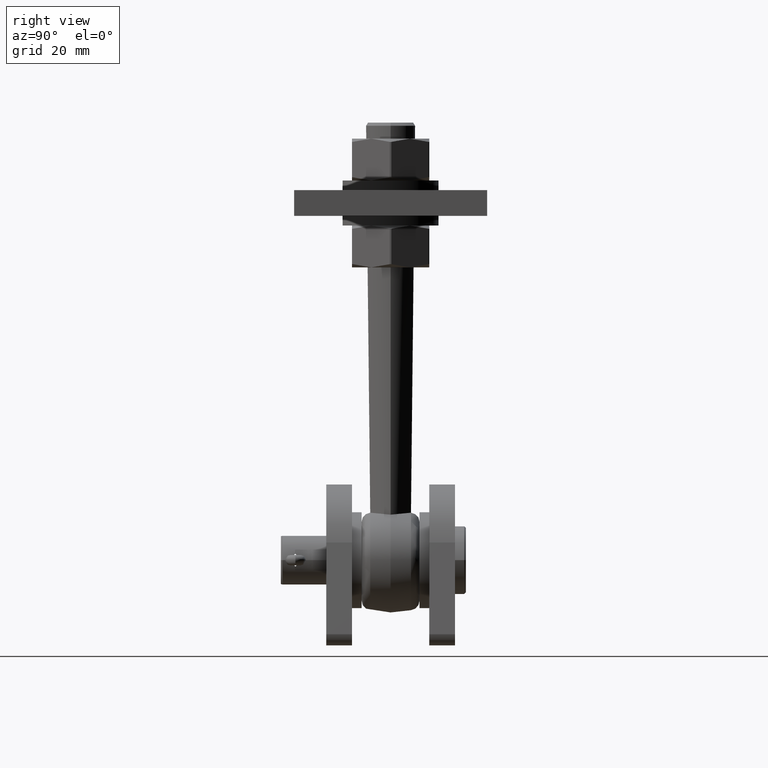
[diagram: clean part render]
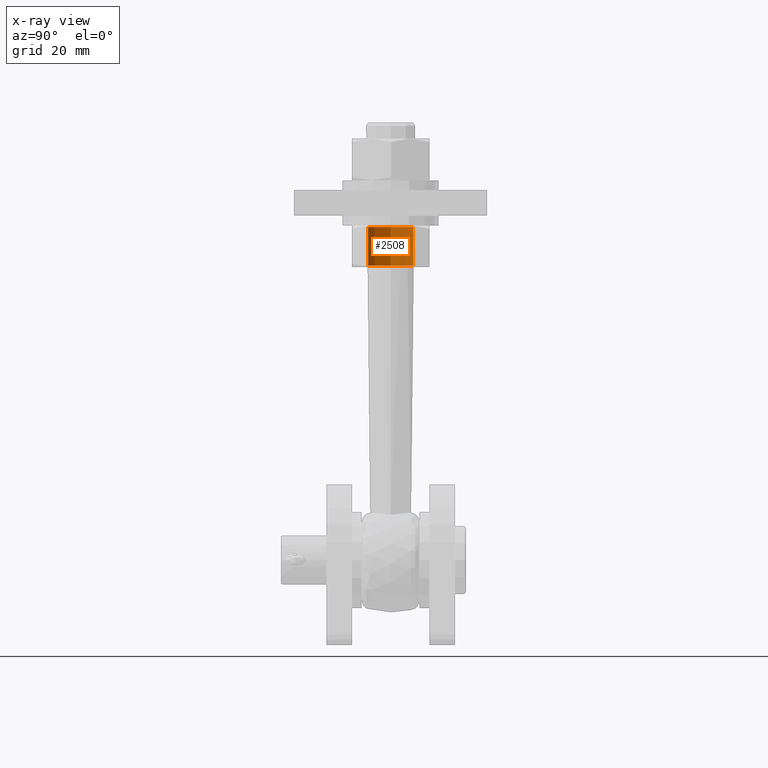
[diagram: x-ray — body ghosted, one internal face saturated and labeled with its STEP entity id]
A machine part, right view, then the same camera in x-ray: the body is ghosted and one INTERNAL B-rep face — a face not visible from any outside direction — is saturated and labeled: STEP entity #2508.
In plain terms, the highlighted cylindrical surface (edge-blend (fillet) strip) has radius 7 mm, axis along (-0, 0, -1).
Its self-contained STEP definition (entity closure, byte-faithful):
#676 = DIRECTION ( 'NONE',  ( 0.000000000000000000, 1.000000000000000000, 1.372308401475337047E-42 ) ) ;
#2123 = LINE ( 'NONE', #11245, #11296 ) ;
#2389 = DIRECTION ( 'NONE',  ( -8.437388524160237871E-40, 0.000000000000000000, 1.000000000000000000 ) ) ;
#2508 = ADVANCED_FACE ( 'NONE', ( #16889 ), #13779, .F. ) ;
#3003 = VERTEX_POINT ( 'NONE', #6179 ) ;
#3016 = CARTESIAN_POINT ( 'NONE',  ( -5.906170346660808488E-39, -6.000000000000005329, 6.999999999999991118 ) ) ;
#3023 = CARTESIAN_POINT ( 'NONE',  ( 8.572527594031215824E-16, 6.500000000000005329, -6.999999999999991118 ) ) ;
#3639 = ORIENTED_EDGE ( 'NONE', *, *, #11315, .T. ) ;
#3680 = EDGE_CURVE ( 'NONE', #4481, #5420, #13346, .T. ) ;
#3934 = CARTESIAN_POINT ( 'NONE',  ( 0.000000000000000000, -6.000000000000005329, -8.233850408869966871E-42 ) ) ;
#4481 = VERTEX_POINT ( 'NONE', #12839 ) ;
#4956 = VECTOR ( 'NONE', #9739, 1000.000000000000000 ) ;
#5247 = AXIS2_PLACEMENT_3D ( 'NONE', #11671, #14259, #2389 ) ;
#5420 = VERTEX_POINT ( 'NONE', #16581 ) ;
#5735 = EDGE_CURVE ( 'NONE', #3003, #4481, #15938, .T. ) ;
#5854 = EDGE_CURVE ( 'NONE', #13821, #5420, #2123, .T. ) ;
#6179 = CARTESIAN_POINT ( 'NONE',  ( 8.572527594031223713E-16, -6.000000000000005329, -6.999999999999997335 ) ) ;
#6430 = DIRECTION ( 'NONE',  ( -0.000000000000000000, -1.000000000000000000, -1.372308401475337047E-42 ) ) ;
#7772 = DIRECTION ( 'NONE',  ( -8.437386209515450719E-40, 0.000000000000000000, 1.000000000000000000 ) ) ;
#8996 = AXIS2_PLACEMENT_3D ( 'NONE', #3934, #6430, #7772 ) ;
#9739 = DIRECTION ( 'NONE',  ( 0.000000000000000000, 1.000000000000000000, 1.372308401475337047E-42 ) ) ;
#9924 = DIRECTION ( 'NONE',  ( -8.437386209515450719E-40, 0.000000000000000000, 1.000000000000000000 ) ) ;
#10079 = EDGE_LOOP ( 'NONE', ( #3639, #15597, #11908, #12474 ) ) ;
#10593 = AXIS2_PLACEMENT_3D ( 'NONE', #13581, #16690, #9924 ) ;
#11245 = CARTESIAN_POINT ( 'NONE',  ( -2.465190329406279207E-29, 6.500000000000005329, 6.999999999999991118 ) ) ;
#11296 = VECTOR ( 'NONE', #676, 1000.000000000000000 ) ;
#11315 = EDGE_CURVE ( 'NONE', #13821, #3003, #14976, .T. ) ;
#11671 = CARTESIAN_POINT ( 'NONE',  ( -2.465190328815661892E-29, 6.500000000000005329, 8.920004609581942008E-42 ) ) ;
#11908 = ORIENTED_EDGE ( 'NONE', *, *, #3680, .T. ) ;
#12474 = ORIENTED_EDGE ( 'NONE', *, *, #5854, .F. ) ;
#12839 = CARTESIAN_POINT ( 'NONE',  ( 8.572527594031223713E-16, 6.000000000000005329, -6.999999999999997335 ) ) ;
#13346 = CIRCLE ( 'NONE', #10593, 6.999999999999991118 ) ;
#13581 = CARTESIAN_POINT ( 'NONE',  ( 0.000000000000000000, 6.000000000000005329, 8.233850408849575294E-42 ) ) ;
#13779 = CYLINDRICAL_SURFACE ( 'NONE', #5247, 6.999999999999991118 ) ;
#13821 = VERTEX_POINT ( 'NONE', #3016 ) ;
#14259 = DIRECTION ( 'NONE',  ( 0.000000000000000000, 1.000000000000000000, 1.372308401475337047E-42 ) ) ;
#14976 = CIRCLE ( 'NONE', #8996, 6.999999999999991118 ) ;
#15597 = ORIENTED_EDGE ( 'NONE', *, *, #5735, .T. ) ;
#15938 = LINE ( 'NONE', #3023, #4956 ) ;
#16581 = CARTESIAN_POINT ( 'NONE',  ( -5.906170346660808488E-39, 6.000000000000005329, 6.999999999999991118 ) ) ;
#16690 = DIRECTION ( 'NONE',  ( 0.000000000000000000, 1.000000000000000000, 1.372308401475337047E-42 ) ) ;
#16889 = FACE_OUTER_BOUND ( 'NONE', #10079, .T. ) ;